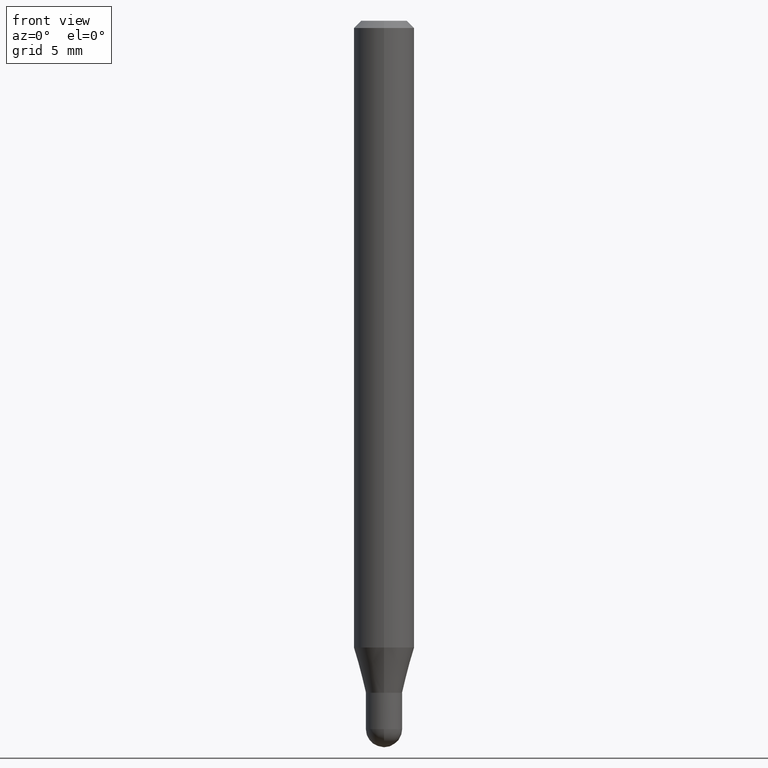
[diagram: clean part render]
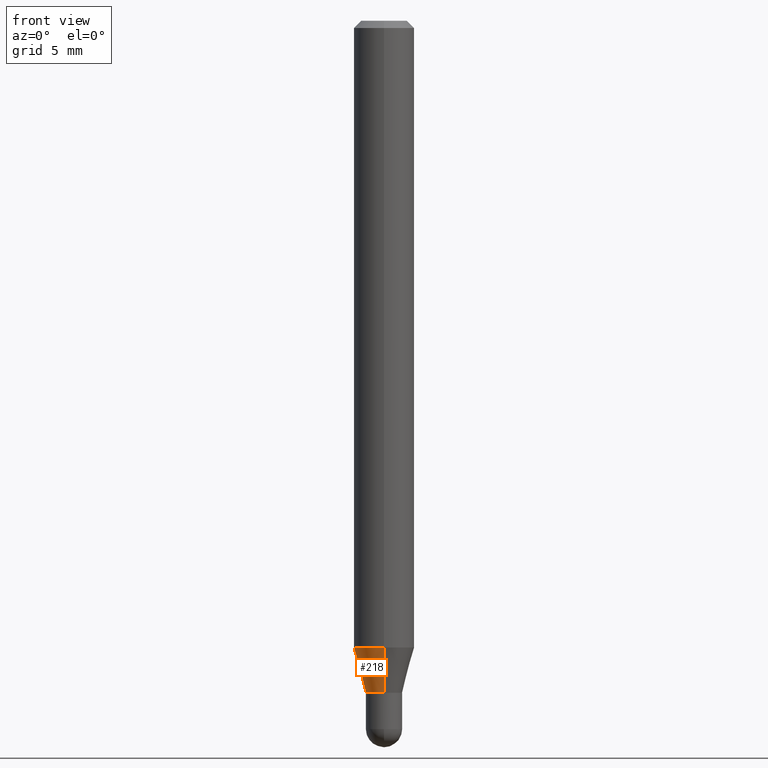
[diagram: same view with one face highlighted and labeled with its STEP entity id]
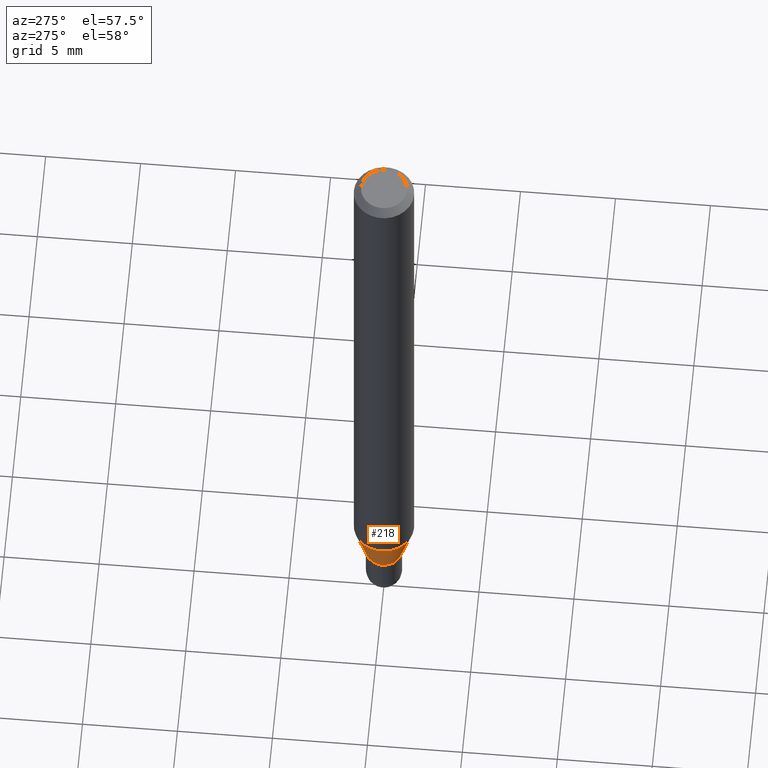
[diagram: same view with one face highlighted and labeled with its STEP entity id]
A machine part, front view. The second image highlights one B-rep face of the part: STEP entity #218.
A second angle (auxiliary view) of the same face is appended — the face is thin or edge-on in the first view.
In plain terms, the highlighted conical surface has half-angle 15 deg.
Its self-contained STEP definition (entity closure, byte-faithful):
#6 = VECTOR ( 'NONE', #462, 39.37007874015748143 ) ;
#15 = CIRCLE ( 'NONE', #490, 0.03749999999999991535 ) ;
#16 = CARTESIAN_POINT ( 'NONE',  ( 2.664535259100708892E-16, 0.03749999999999507200, -1.387500000000000178 ) ) ;
#29 = LINE ( 'NONE', #16, #6 ) ;
#40 = VERTEX_POINT ( 'NONE', #421 ) ;
#48 = EDGE_CURVE ( 'NONE', #333, #52, #294, .T. ) ;
#52 = VERTEX_POINT ( 'NONE', #384 ) ;
#57 = EDGE_CURVE ( 'NONE', #40, #381, #29, .T. ) ;
#59 = ORIENTED_EDGE ( 'NONE', *, *, #48, .T. ) ;
#70 = DIRECTION ( 'NONE',  ( -2.445502103091854659E-29, 3.491433655777583102E-15, 1.000000000000000000 ) ) ;
#144 = DIRECTION ( 'NONE',  ( -2.445502103091854659E-29, 3.491433655777583102E-15, 1.000000000000000000 ) ) ;
#146 = FACE_OUTER_BOUND ( 'NONE', #320, .T. ) ;
#154 = ORIENTED_EDGE ( 'NONE', *, *, #252, .F. ) ;
#164 = AXIS2_PLACEMENT_3D ( 'NONE', #395, #70, #234 ) ;
#179 = DIRECTION ( 'NONE',  ( -6.982962677686265922E-15, -1.000000000000000000, 4.370956789862821150E-15 ) ) ;
#197 = AXIS2_PLACEMENT_3D ( 'NONE', #424, #144, #179 ) ;
#218 = ADVANCED_FACE ( 'NONE', ( #146 ), #454, .T. ) ;
#234 = DIRECTION ( 'NONE',  ( -6.982962677686266711E-15, -1.000000000000000000, 0.000000000000000000 ) ) ;
#240 = CARTESIAN_POINT ( 'NONE',  ( 4.440892098500939734E-16, 0.06249999999999544809, -1.294198729810781323 ) ) ;
#241 = ORIENTED_EDGE ( 'NONE', *, *, #245, .T. ) ;
#245 = EDGE_CURVE ( 'NONE', #40, #333, #15, .T. ) ;
#252 = EDGE_CURVE ( 'NONE', #381, #52, #487, .T. ) ;
#265 = DIRECTION ( 'NONE',  ( -6.982962677686266711E-15, -1.000000000000000000, 0.000000000000000000 ) ) ;
#269 = CARTESIAN_POINT ( 'NONE',  ( 3.393134168039948742E-29, -4.844364197391397644E-15, -1.387500000000000178 ) ) ;
#275 = CARTESIAN_POINT ( 'NONE',  ( -2.618611004132004397E-16, -0.03750000000000475869, -1.387500000000000178 ) ) ;
#294 = LINE ( 'NONE', #296, #393 ) ;
#296 = CARTESIAN_POINT ( 'NONE',  ( -2.618611004132004397E-16, -0.03750000000000475869, -1.387500000000000178 ) ) ;
#320 = EDGE_LOOP ( 'NONE', ( #433, #241, #59, #154 ) ) ;
#333 = VERTEX_POINT ( 'NONE', #275 ) ;
#381 = VERTEX_POINT ( 'NONE', #240 ) ;
#384 = CARTESIAN_POINT ( 'NONE',  ( -4.364351673553602629E-16, -0.06250000000000455191, -1.294198729810780879 ) ) ;
#393 = VECTOR ( 'NONE', #496, 39.37007874015748143 ) ;
#394 = DIRECTION ( 'NONE',  ( -2.445502103091854659E-29, 3.491433655777583102E-15, 1.000000000000000000 ) ) ;
#395 = CARTESIAN_POINT ( 'NONE',  ( 3.393134168039948742E-29, -4.844364197391397644E-15, -1.387500000000000178 ) ) ;
#421 = CARTESIAN_POINT ( 'NONE',  ( 3.552713678800826532E-16, 0.03749999999999507200, -1.387500000000000178 ) ) ;
#424 = CARTESIAN_POINT ( 'NONE',  ( 3.164965715571072144E-29, -4.518609002525959102E-15, -1.294198729810781101 ) ) ;
#433 = ORIENTED_EDGE ( 'NONE', *, *, #57, .F. ) ;
#454 = CONICAL_SURFACE ( 'NONE', #164, 0.03749999999999991535, 0.2617993877991579565 ) ;
#462 = DIRECTION ( 'NONE',  ( 1.839019923739653169E-15, 0.2588190451025323968, 0.9659258262890650926 ) ) ;
#487 = CIRCLE ( 'NONE', #197, 0.06250000000000000000 ) ;
#490 = AXIS2_PLACEMENT_3D ( 'NONE', #269, #394, #265 ) ;
#496 = DIRECTION ( 'NONE',  ( -1.807323732225382204E-15, -0.2588190451025256245, 0.9659258262890669799 ) ) ;